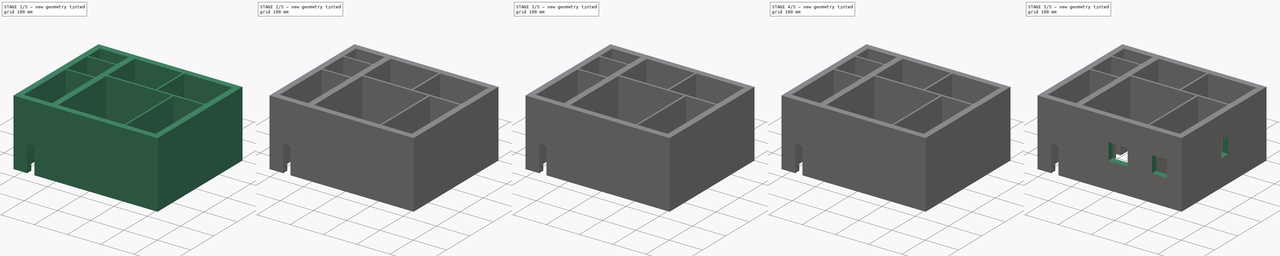
[diagram: build sequence overview — one tinted view per stage of 5, left to right]
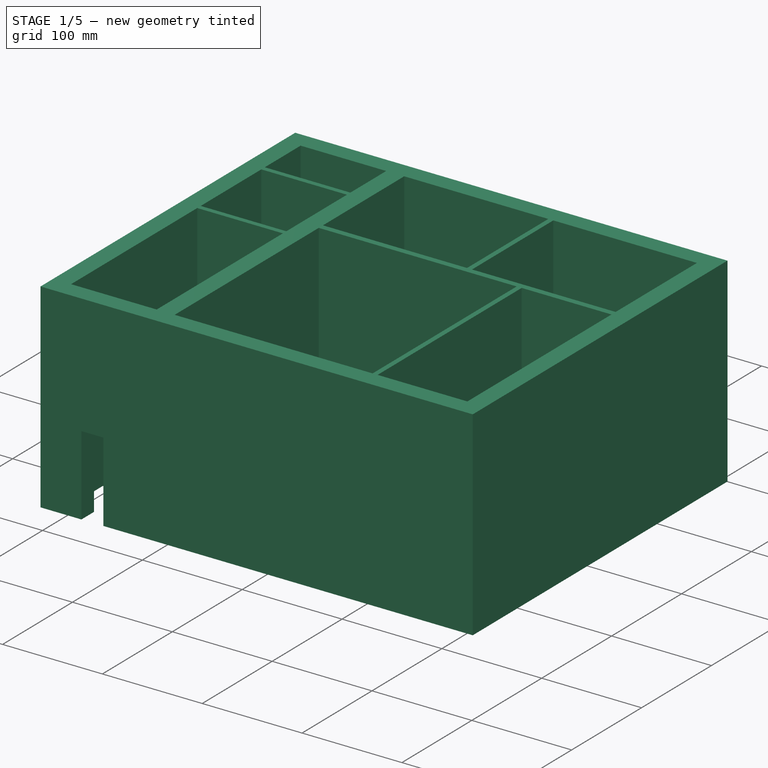
[diagram: stage 1 of 5 — iso view after this stage's code; geometry added in this stage tinted green]
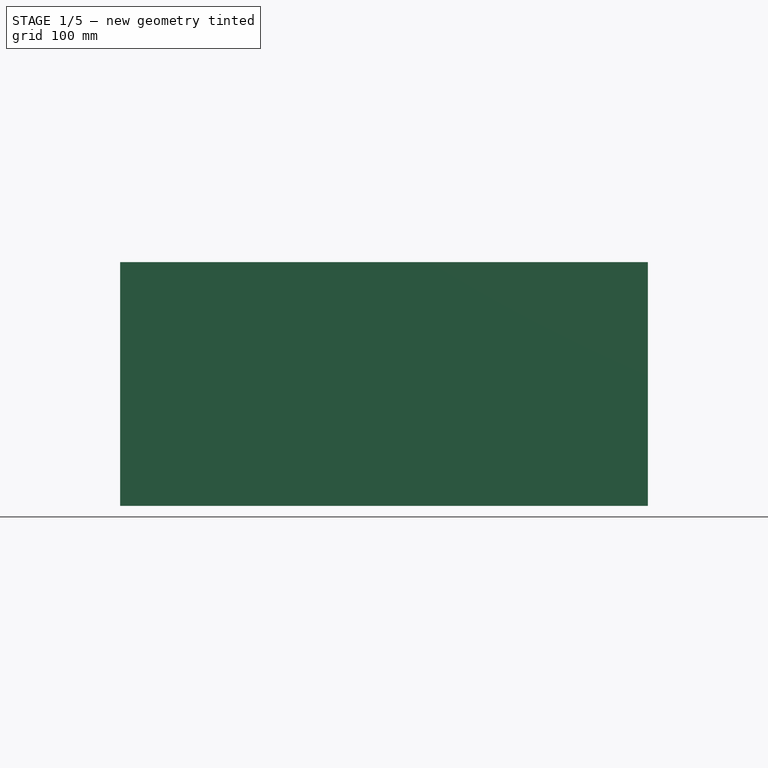
[diagram: stage 1 of 5 — front view after this stage's code; geometry added in this stage tinted green]
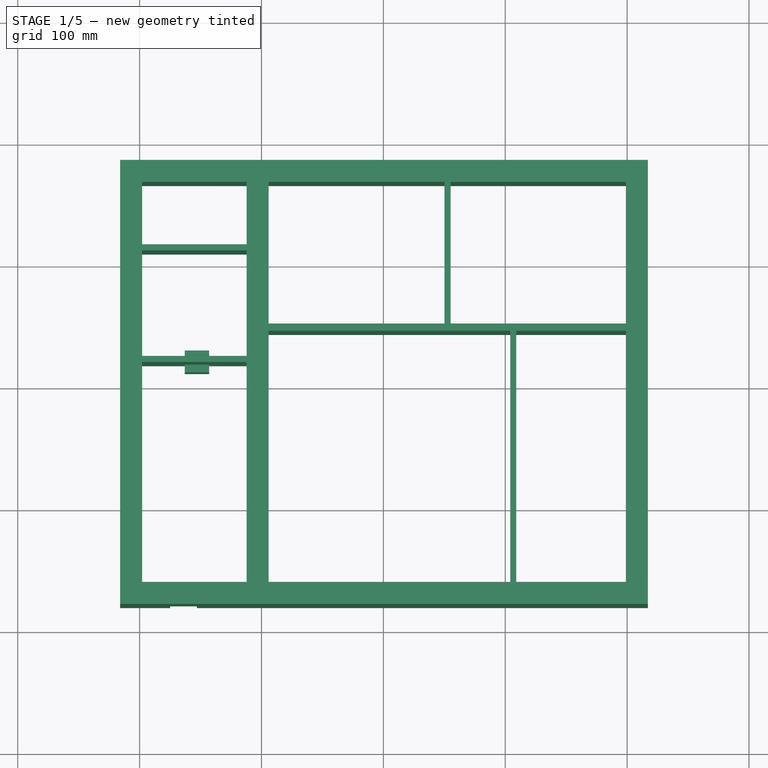
[diagram: stage 1 of 5 — top view after this stage's code; geometry added in this stage tinted green]
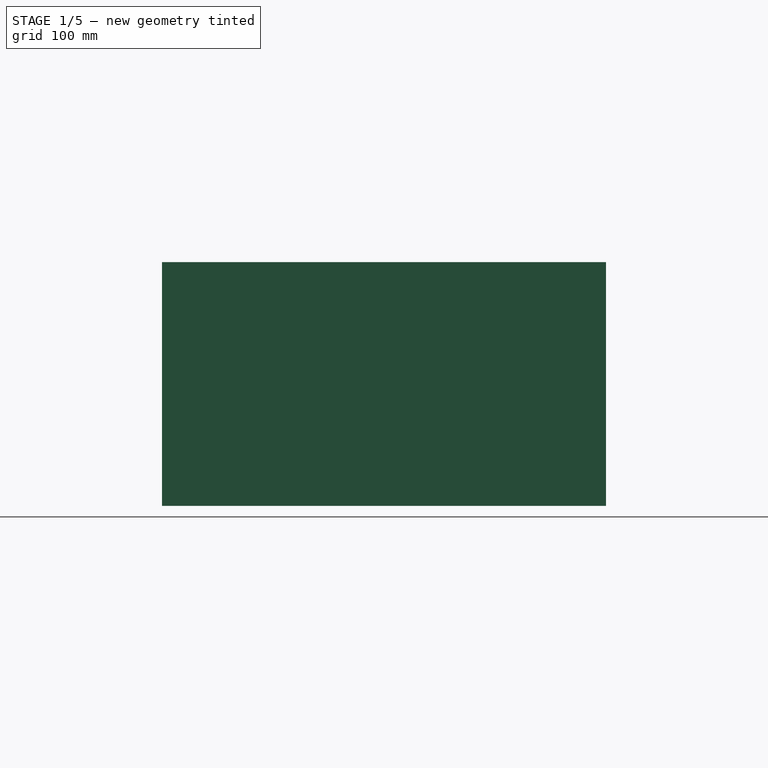
[diagram: stage 1 of 5 — right view after this stage's code; geometry added in this stage tinted green]
FCSTD DOCUMENT  (FreeCAD 0.18R4 (GitTag))
Label: Home
License: All rights reserved
LicenseURL: http://en.wikipedia.org/wiki/All_rights_reserved
objects: Part::Box×18, Part::Cut×18, Sketcher::SketchObject×3, Part::FeaturePython×3, Image::ImagePlane×1
note: 42 computed .brp shape members not serialized (recipe doc carries the construction recipe); baked Part::Feature solids carry a one-line shape summary decoded from their .brp

FEATURE [Image::ImagePlane] ImagePlane
  XSize = 452
  YSize = 380
FEATURE [Sketcher::SketchObject] Sketch
  sketch-geometry (5):
    g0: LineSegment StartX=-206.94 StartY=175.28 StartZ=0 EndX=208 EndY=175.28 EndZ=0
    g1: LineSegment StartX=208 StartY=175.28 StartZ=0 EndX=208 EndY=-171.04 EndZ=0
    g2: LineSegment StartX=208 StartY=-171.04 StartZ=0 EndX=-206.94 EndY=-171.04 EndZ=0
    g3: LineSegment StartX=-206.94 StartY=-171.04 StartZ=0 EndX=-206.94 EndY=175.28 EndZ=0
    g4: LineSegment StartX=-103.18 StartY=175.28 StartZ=0 EndX=-103.18 EndY=-171.04 EndZ=0
  constraints (16):
    c: Coincident(g0,g1)
    c: Coincident(g1,g2)
    c: Coincident(g2,g3)
    c: Coincident(g3,g0)
    c: Horizontal(g0)
    c: Horizontal(g2)
    c: Vertical(g1)
    c: Vertical(g3)
    c: PointOnObject(g4,g0)
    c: PointOnObject(g4,g2)
    c: Vertical(g4)
    c: DistanceY(g-1,g0) = 175.28
    c: Distance(g-1,g4) = 103.18
    c: DistanceY(g1,g1) = 346.32
    c: DistanceX(g2,g2) = 414.94
    c: DistanceX(g-2,g1) = 208
FEATURE [Part::FeaturePython] Wall  # Arch/BIM object (typed FeaturePython)
  Align = 2
  Base = -> Sketch
  BlockHeight = 0
  BlockLength = 0
  CountBroken = 0
  CountEntire = 0
  Face = 0
  Height = 200
  HorizontalArea = 0
  IfcRole = 156
  Joint = 0
  Length = 1868.84
  MakeBlocks = false
  MoveWithHost = false
  Normal = (0,0,0)
  OffsetFirst = 0
  OffsetSecond = 0
  PerimeterLength = 0
  VerticalArea = 0
  Width = 18
FEATURE [Sketcher::SketchObject] Sketch001
  ExternalGeometry = -> [Sketch]
  sketch-geometry (1):
    g0: LineSegment StartX=-103.18 StartY=47.05 StartZ=0 EndX=208 EndY=47.05 EndZ=0
  constraints (4):
    c: PointOnObject(g0,g-4)
    c: PointOnObject(g0,g-3)
    c: Horizontal(g0)
    c: Distance(g-1,g0) = 47.05
FEATURE [Part::FeaturePython] Wall001  # Arch/BIM object (typed FeaturePython)
  Align = 2
  Base = -> Sketch001
  BlockHeight = 0
  BlockLength = 0
  CountBroken = 0
  CountEntire = 0
  Face = 0
  Height = 200
  HorizontalArea = 1867.08
  IfcRole = 156
  Joint = 0
  Length = 311.18
  MakeBlocks = false
  MoveWithHost = false
  Normal = (0,0,0)
  OffsetFirst = 0
  OffsetSecond = 0
  PerimeterLength = 634.36
  VerticalArea = 126872
  Width = 6
FEATURE [Sketcher::SketchObject] Sketch002
  ExternalGeometry = -> [Sketch001,Sketch]
  sketch-geometry (4):
    g0: LineSegment StartX=52.66 StartY=175.28 StartZ=0 EndX=52.66 EndY=47.05 EndZ=0
    g1: LineSegment StartX=106.58 StartY=47.05 StartZ=0 EndX=106.58 EndY=-171.04 EndZ=0
    g2: LineSegment StartX=-206.94 StartY=112.53 StartZ=0 EndX=-103.18 EndY=112.53 EndZ=0
    g3: LineSegment StartX=-206.94 StartY=20.91 StartZ=0 EndX=-103.18 EndY=20.91 EndZ=0
  constraints (16):
    c: PointOnObject(g0,g-4)
    c: PointOnObject(g0,g-3)
    c: Vertical(g0)
    c: DistanceX(g-2,g0) = 52.66
    c: PointOnObject(g1,g-3)
    c: PointOnObject(g1,g-8)
    c: Vertical(g1)
    c: Distance(g-1,g1) = 106.58
    c: PointOnObject(g2,g-7)
    c: PointOnObject(g2,g-5)
    c: Horizontal(g2)
    c: PointOnObject(g3,g-5)
    c: Horizontal(g3)
    c: DistanceY(g-1,g3) = 20.91
    c: DistanceY(g-1,g2) = 112.53
    c: PointOnObject(g3,g-7)
FEATURE [Part::FeaturePython] Wall002  # Arch/BIM object (typed FeaturePython)
  Additions = -> [Wall001,Wall]
  Align = 2
  Base = -> Sketch002
  BlockHeight = 0
  BlockLength = 0
  CountBroken = 0
  CountEntire = 0
  Face = 0
  Height = 200
  HorizontalArea = 0
  IfcRole = 156
  Joint = 0
  Length = 553.84
  MakeBlocks = false
  MoveWithHost = false
  Normal = (0,0,0)
  OffsetFirst = 0
  OffsetSecond = 0
  PerimeterLength = 0
  VerticalArea = 0
  Width = 5
FEATURE [Part::Box] Box  label="Куб"
  AttacherType = Attacher::AttachEngine3D
  Height = 80
  Length = 22
  Placement = pos=(-175,-182,0) rot=(0,0,1;0rad)
  Width = 25
FEATURE [Part::Box] Box001  label="Куб001"
  AttacherType = Attacher::AttachEngine3D
  Height = 80
  Length = 25
  Placement = pos=(-115,-17,0) rot=(0,0,1;0rad)
  Width = 20
FEATURE [Part::Box] Box002  label="Куб002"
  AttacherType = Attacher::AttachEngine3D
  Height = 80
  Length = 20
  Placement = pos=(-163,12,0) rot=(0,0,1;0rad)
  Width = 18
FEATURE [Part::Cut] Cut
  Base = -> Wall002
  Tool = -> Box
FEATURE [Part::Cut] Cut001
  Base = -> Cut
  Tool = -> Box001
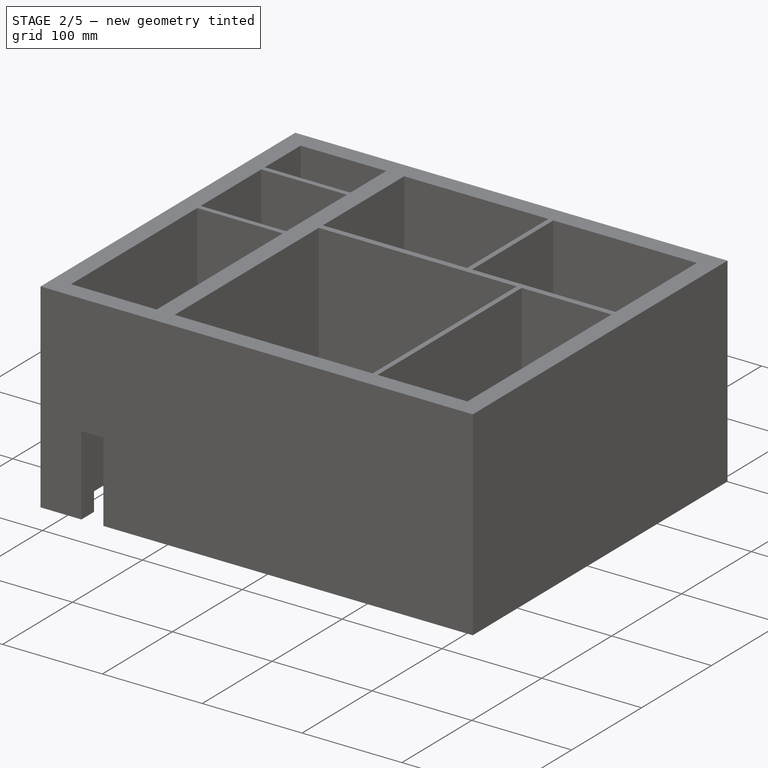
[diagram: stage 2 of 5 — iso view after this stage's code; geometry added in this stage tinted green]
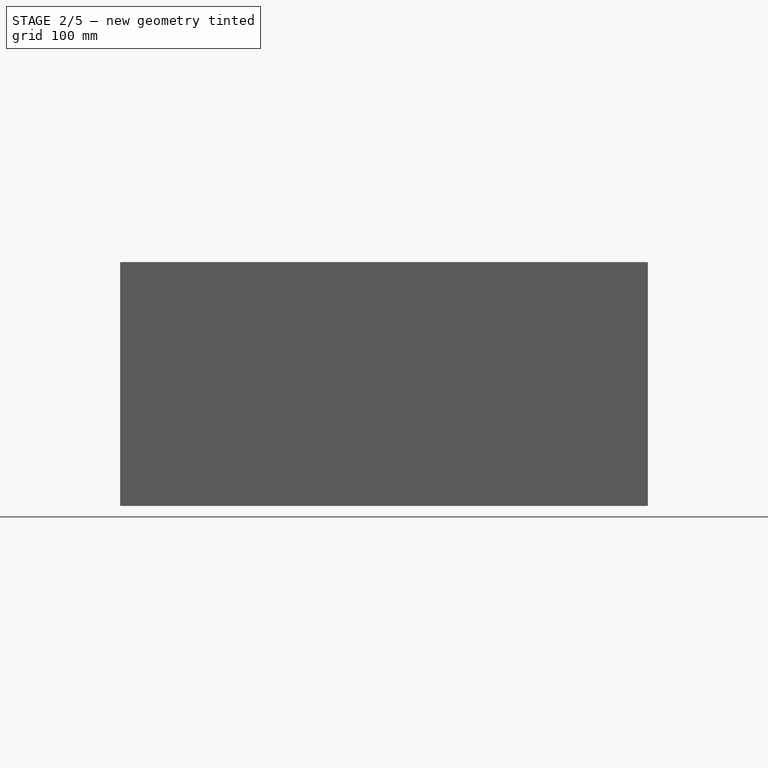
[diagram: stage 2 of 5 — front view after this stage's code; geometry added in this stage tinted green]
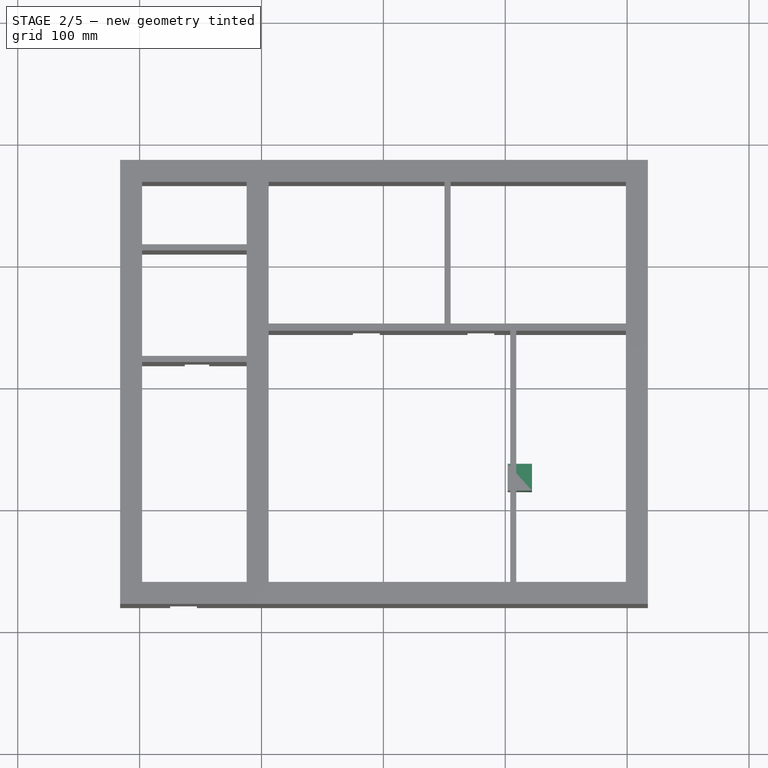
[diagram: stage 2 of 5 — top view after this stage's code; geometry added in this stage tinted green]
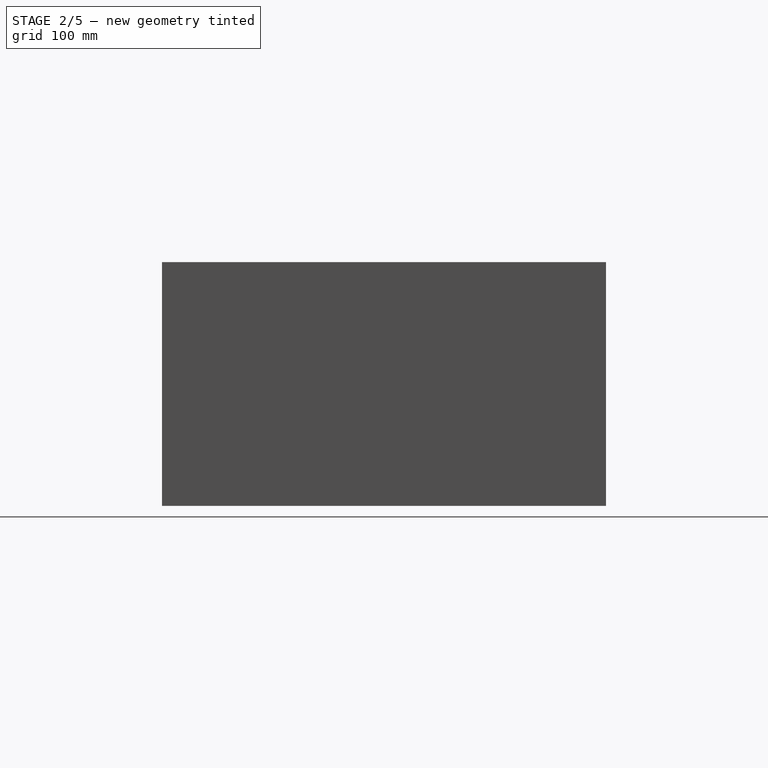
[diagram: stage 2 of 5 — right view after this stage's code; geometry added in this stage tinted green]
FEATURE [Part::Box] Box003  label="Куб003"
  AttacherType = Attacher::AttachEngine3D
  Height = 80
  Length = 22
  Placement = pos=(-25,39,0) rot=(0,0,1;0rad)
  Width = 20
FEATURE [Part::Box] Box004  label="Куб004"
  AttacherType = Attacher::AttachEngine3D
  Height = 80
  Length = 22
  Placement = pos=(69,39,0) rot=(0,0,1;0rad)
  Width = 20
FEATURE [Part::Box] Box005  label="Куб005"
  AttacherType = Attacher::AttachEngine3D
  Height = 80
  Length = 22
  Placement = pos=(102,17,0) rot=(0,0,1;4.71239rad)
  Width = 20
FEATURE [Part::Box] Box006  label="Куб006"
  AttacherType = Attacher::AttachEngine3D
  Height = 80
  Length = 22
  Placement = pos=(102,-63,0) rot=(0,0,-1;1.5708rad)
  Width = 20
FEATURE [Part::Cut] Cut002
  Base = -> Cut001
  Tool = -> Box002
FEATURE [Part::Cut] Cut003
  Base = -> Cut002
  Tool = -> Box003
FEATURE [Part::Cut] Cut004
  Base = -> Cut003
  Tool = -> Box004
FEATURE [Part::Cut] Cut005
  Base = -> Cut004
  Tool = -> Box005
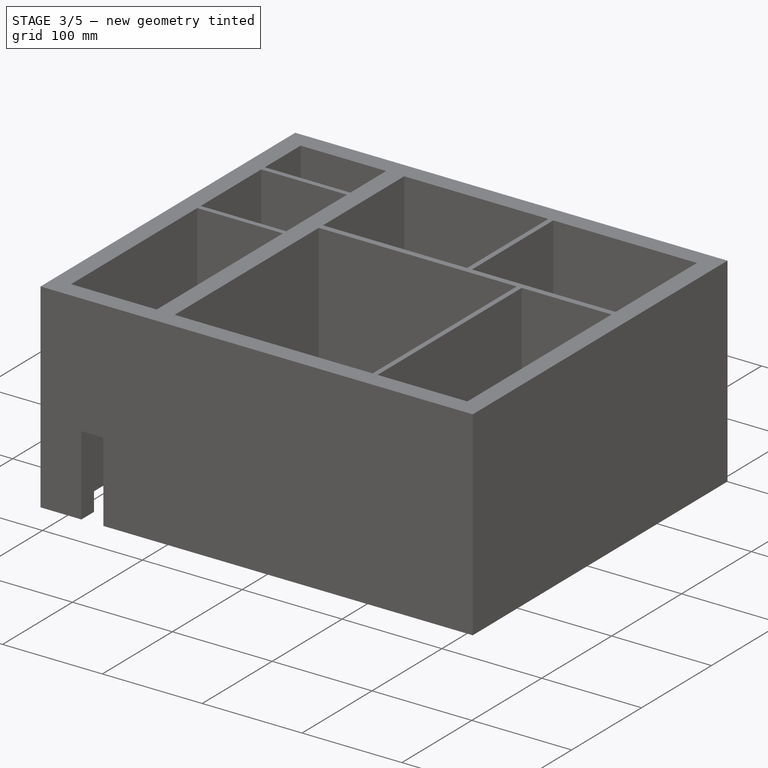
[diagram: stage 3 of 5 — iso view after this stage's code; geometry added in this stage tinted green]
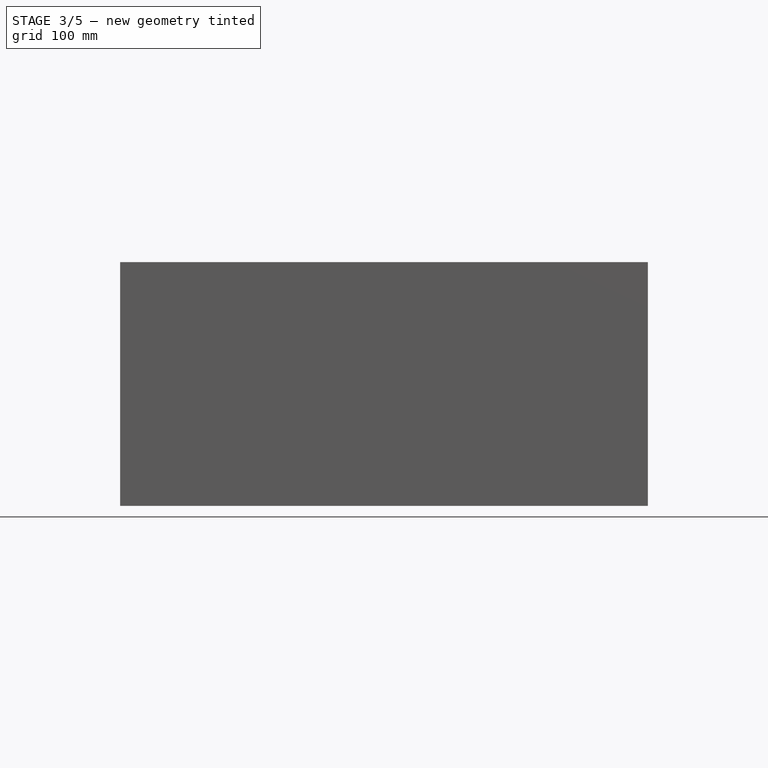
[diagram: stage 3 of 5 — front view after this stage's code; geometry added in this stage tinted green]
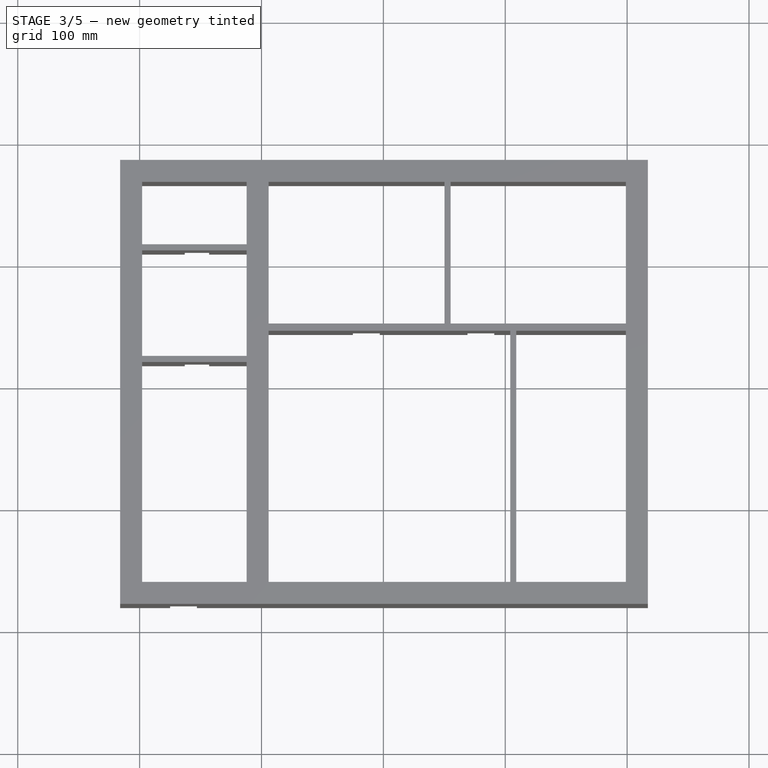
[diagram: stage 3 of 5 — top view after this stage's code; geometry added in this stage tinted green]
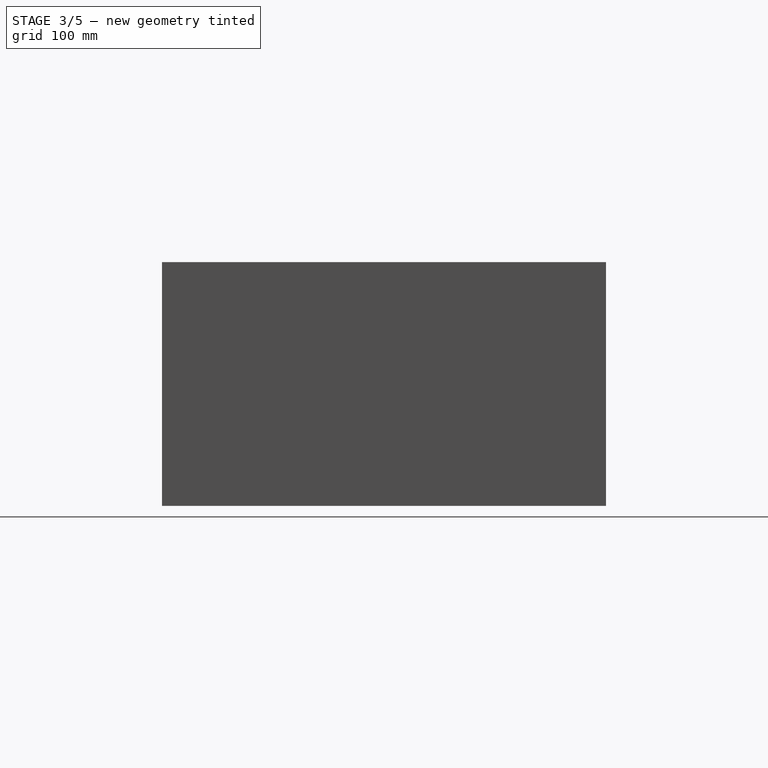
[diagram: stage 3 of 5 — right view after this stage's code; geometry added in this stage tinted green]
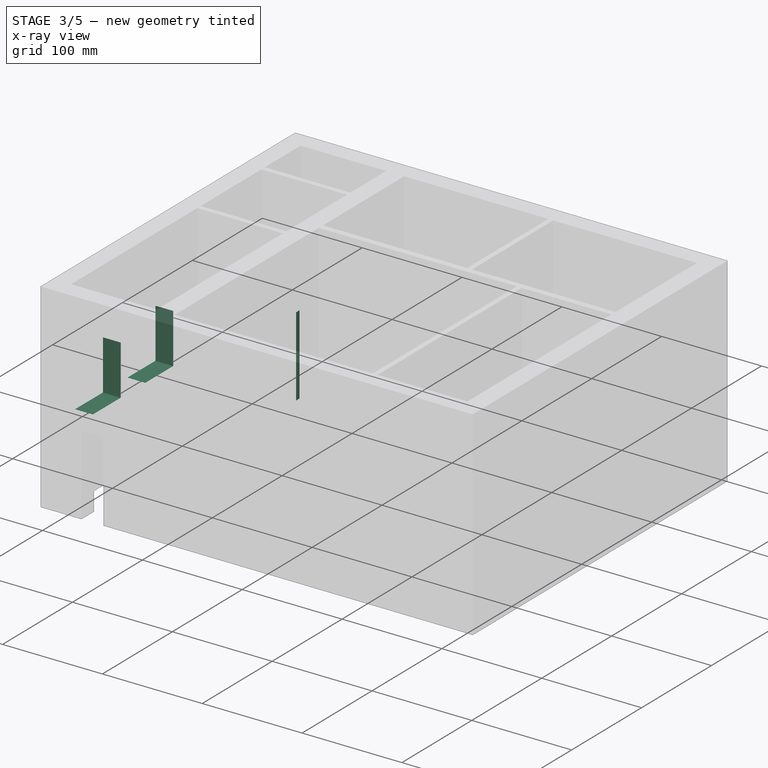
[diagram: stage 3 of 5 — x-ray composite at the iso view; earlier geometry ghosted, this stage's added geometry solid]
FEATURE [Part::Box] Box007  label="Куб007"
  AttacherType = Attacher::AttachEngine3D
  Height = 80
  Length = 20
  Placement = pos=(-163,101,0) rot=(0,0,1;0rad)
  Width = 18
FEATURE [Part::Box] Box008  label="Куб008"
  AttacherType = Attacher::AttachEngine3D
  Height = 50
  Length = 30
  Placement = pos=(-222,-56,70) rot=(0,0,1;0rad)
  Width = 40
FEATURE [Part::Box] Box009  label="Куб009"
  AttacherType = Attacher::AttachEngine3D
  Height = 50
  Length = 30
  Placement = pos=(-222,-131,70) rot=(0,0,1;0rad)
  Width = 40
FEATURE [Part::Cut] Cut006
  Base = -> Cut005
  Tool = -> Box006
FEATURE [Part::Cut] Cut007
  Base = -> Cut006
  Tool = -> Box007
FEATURE [Part::Cut] Cut008
  Base = -> Cut007
  Tool = -> Box008
FEATURE [Part::Cut] Cut009
  Base = -> Cut008
  Tool = -> Box009
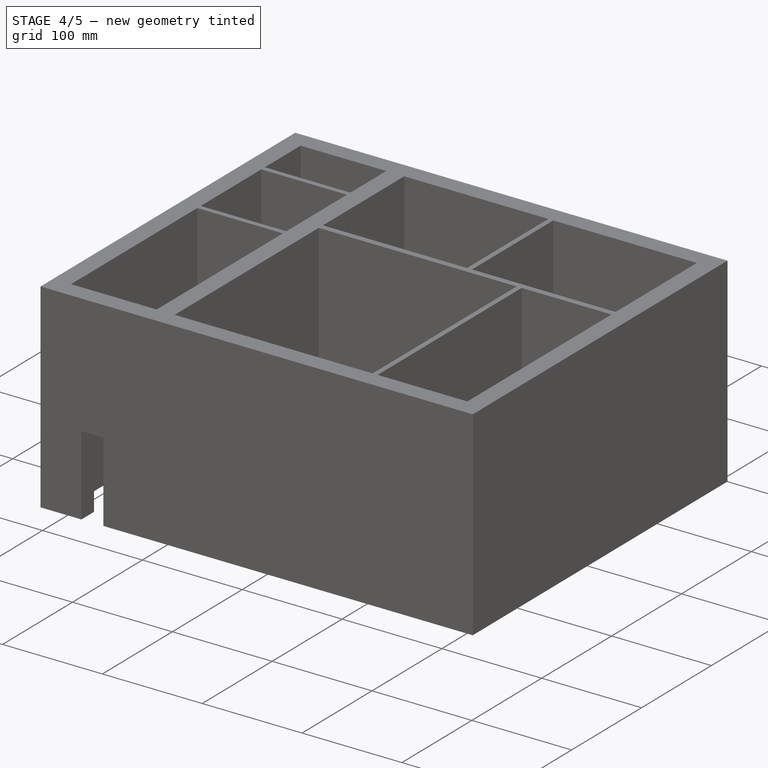
[diagram: stage 4 of 5 — iso view after this stage's code; geometry added in this stage tinted green]
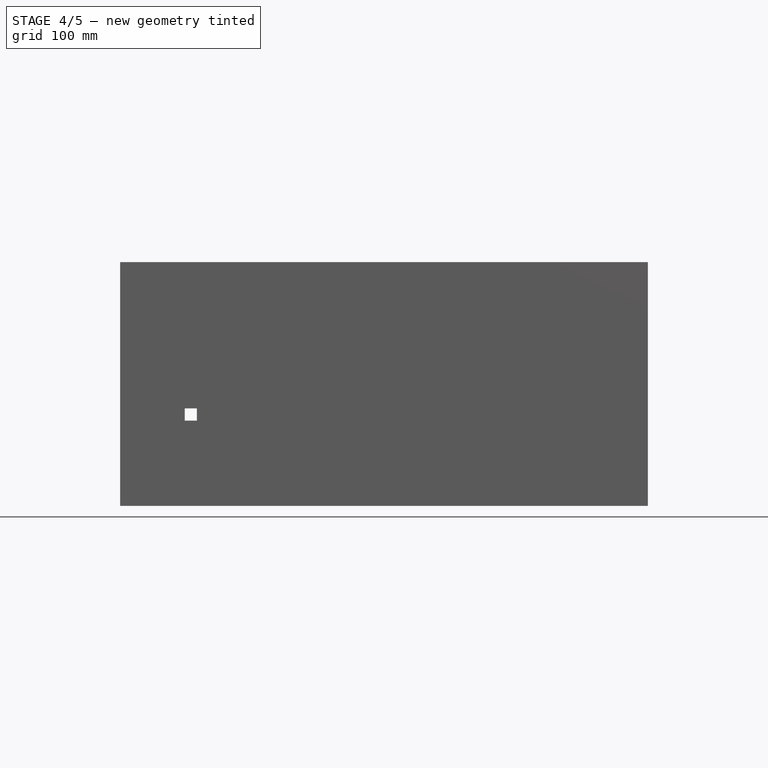
[diagram: stage 4 of 5 — front view after this stage's code; geometry added in this stage tinted green]
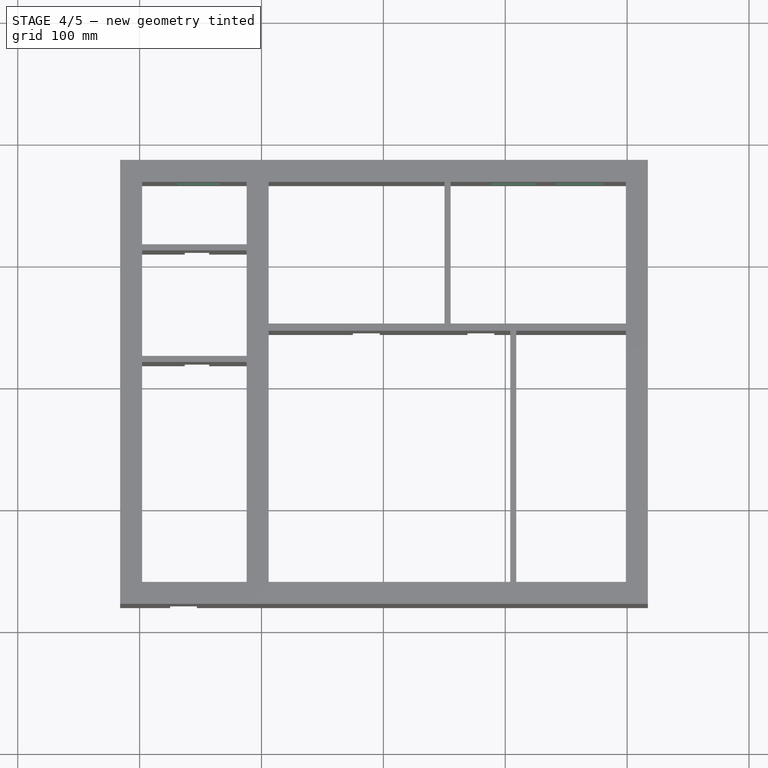
[diagram: stage 4 of 5 — top view after this stage's code; geometry added in this stage tinted green]
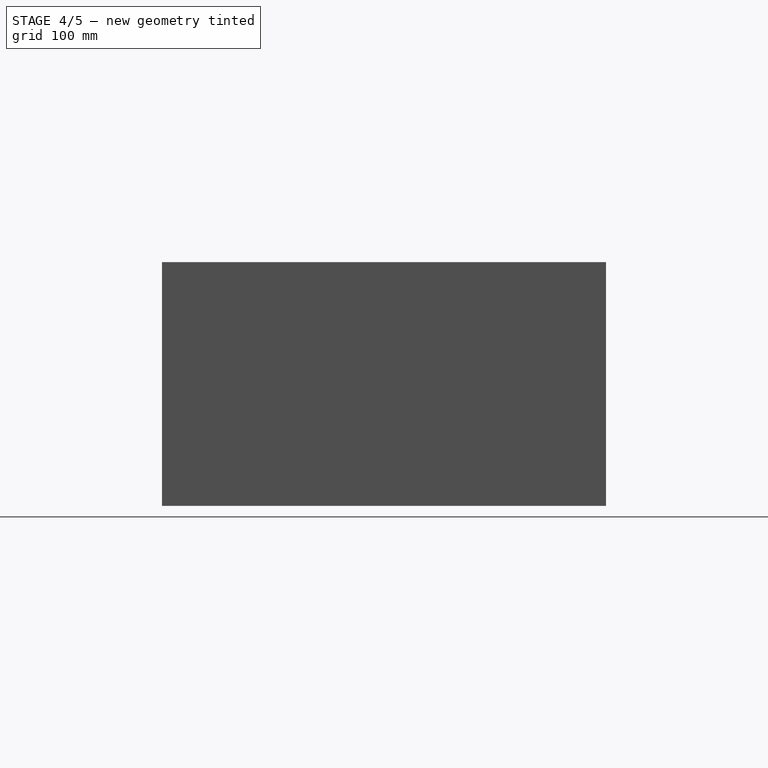
[diagram: stage 4 of 5 — right view after this stage's code; geometry added in this stage tinted green]
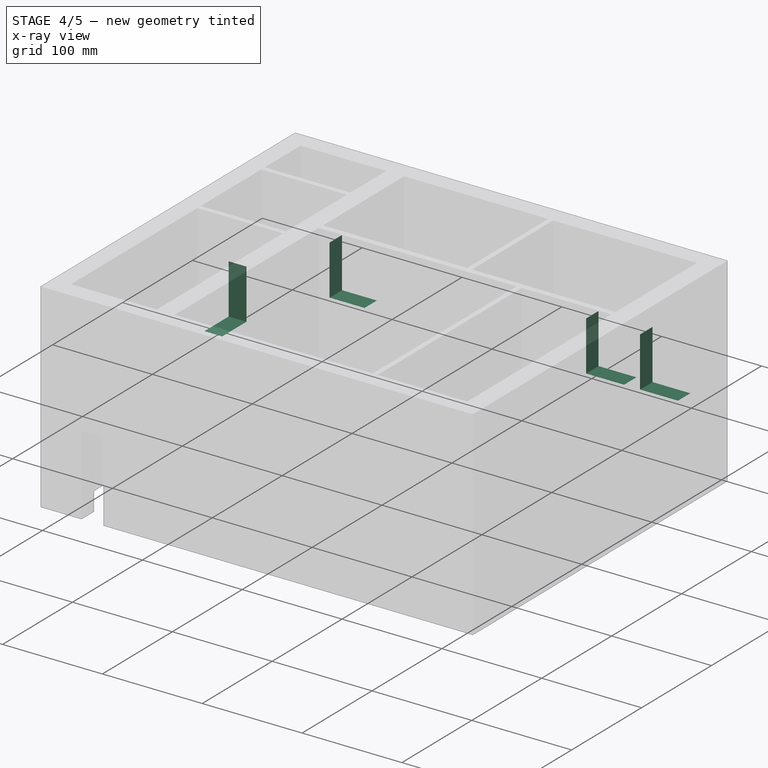
[diagram: stage 4 of 5 — x-ray composite at the iso view; earlier geometry ghosted, this stage's added geometry solid]
FEATURE [Part::Box] Box010  label="Куб010"
  AttacherType = Attacher::AttachEngine3D
  Height = 50
  Length = 30
  Placement = pos=(-222,54,70) rot=(0,0,1;0rad)
  Width = 35
FEATURE [Part::Box] Box011  label="Куб011"
  AttacherType = Attacher::AttachEngine3D
  Height = 50
  Length = 30
  Placement = pos=(-169,189,70) rot=(0,0,1;4.71239rad)
  Width = 35
FEATURE [Part::Box] Box012  label="Куб012"
  AttacherType = Attacher::AttachEngine3D
  Height = 50
  Length = 30
  Placement = pos=(88,189,70) rot=(0,0,-1;1.5708rad)
  Width = 38
FEATURE [Part::Box] Box013  label="Куб013"
  AttacherType = Attacher::AttachEngine3D
  Height = 50
  Length = 30
  Placement = pos=(142,189,70) rot=(0,0,-1;1.5708rad)
  Width = 38
FEATURE [Part::Cut] Cut010
  Base = -> Cut009
  Tool = -> Box010
FEATURE [Part::Cut] Cut011
  Base = -> Cut010
  Tool = -> Box011
FEATURE [Part::Cut] Cut012
  Base = -> Cut011
  Tool = -> Box012
FEATURE [Part::Cut] Cut013
  Base = -> Cut012
  Tool = -> Box013
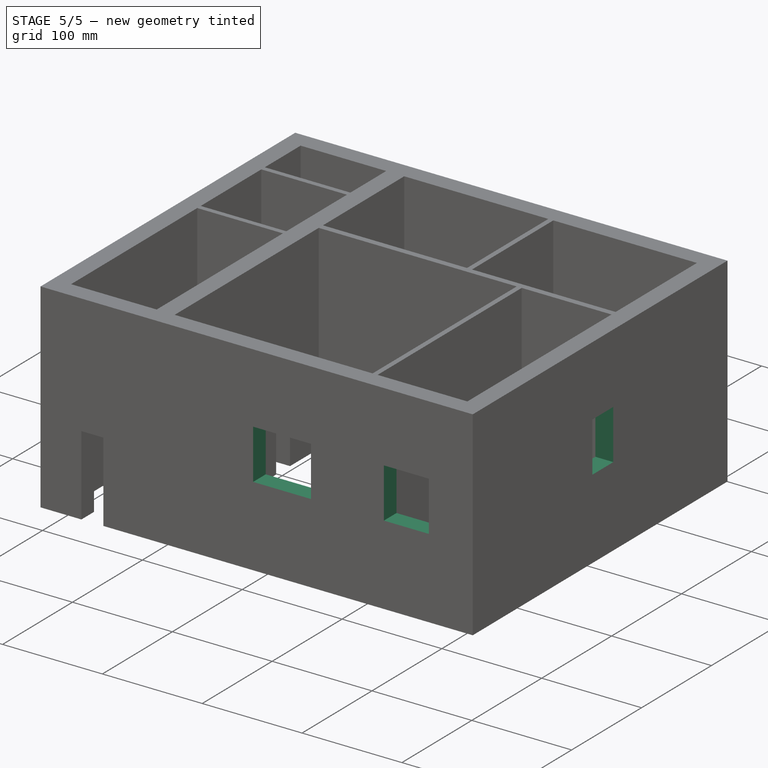
[diagram: stage 5 of 5 — iso view after this stage's code; geometry added in this stage tinted green]
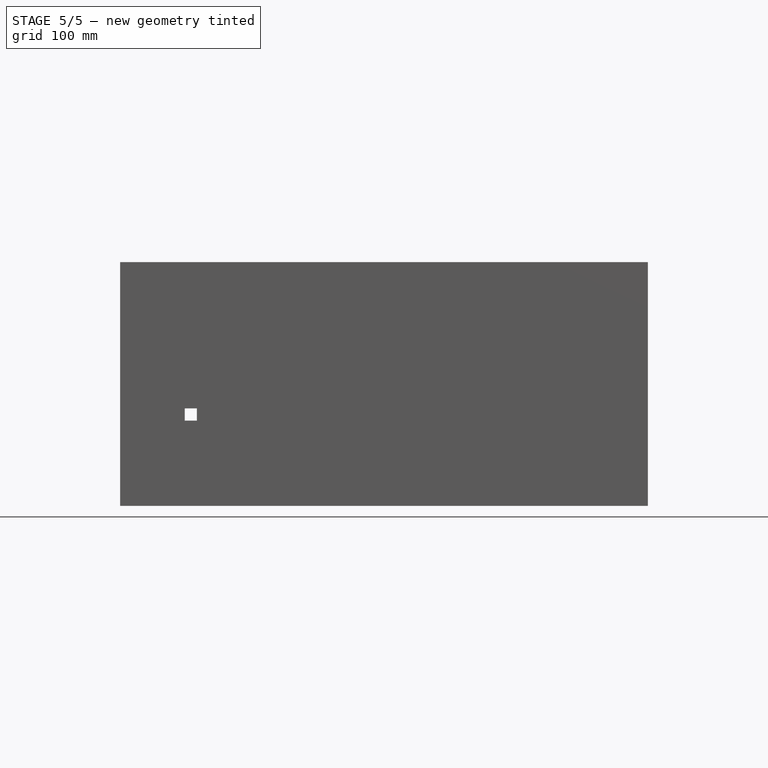
[diagram: stage 5 of 5 — front view after this stage's code; geometry added in this stage tinted green]
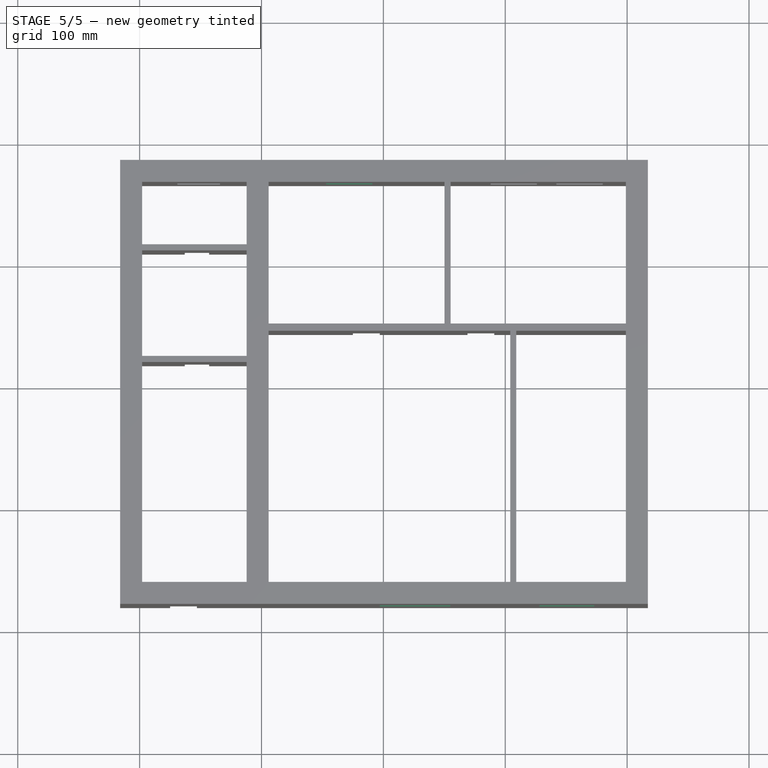
[diagram: stage 5 of 5 — top view after this stage's code; geometry added in this stage tinted green]
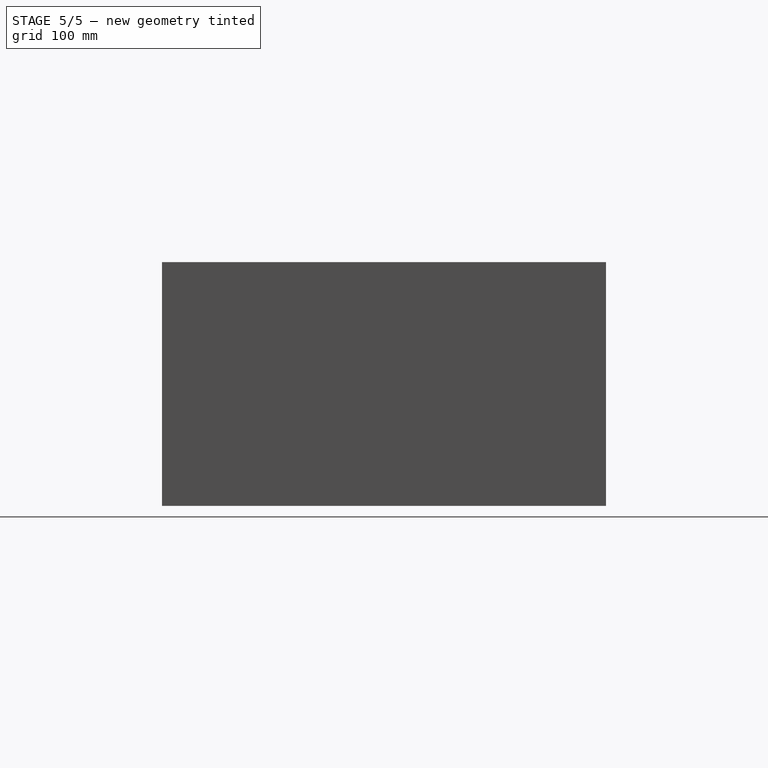
[diagram: stage 5 of 5 — right view after this stage's code; geometry added in this stage tinted green]
FEATURE [Part::Box] Box014  label="Куб014"
  AttacherType = Attacher::AttachEngine3D
  Height = 50
  Length = 30
  Placement = pos=(-47,189,80) rot=(0,0,-1;1.5708rad)
  Width = 38
FEATURE [Part::Box] Box015  label="Куб015"
  AttacherType = Attacher::AttachEngine3D
  Height = 50
  Length = 30
  Placement = pos=(195,-9,80) rot=(0,0,1;0rad)
  Width = 30
FEATURE [Part::Box] Box016  label="Куб016"
  AttacherType = Attacher::AttachEngine3D
  Height = 50
  Length = 30
  Placement = pos=(128,-154,80) rot=(0,0,-1;1.5708rad)
  Width = 45
FEATURE [Part::Box] Box017  label="Куб017"
  AttacherType = Attacher::AttachEngine3D
  Height = 50
  Length = 30
  Placement = pos=(-3,-154,80) rot=(0,0,-1;1.5708rad)
  Width = 58
FEATURE [Part::Cut] Cut014
  Base = -> Cut013
  Tool = -> Box014
FEATURE [Part::Cut] Cut015
  Base = -> Cut014
  Tool = -> Box015
FEATURE [Part::Cut] Cut016
  Base = -> Cut015
  Tool = -> Box016
FEATURE [Part::Cut] Cut017
  Base = -> Cut016
  Tool = -> Box017
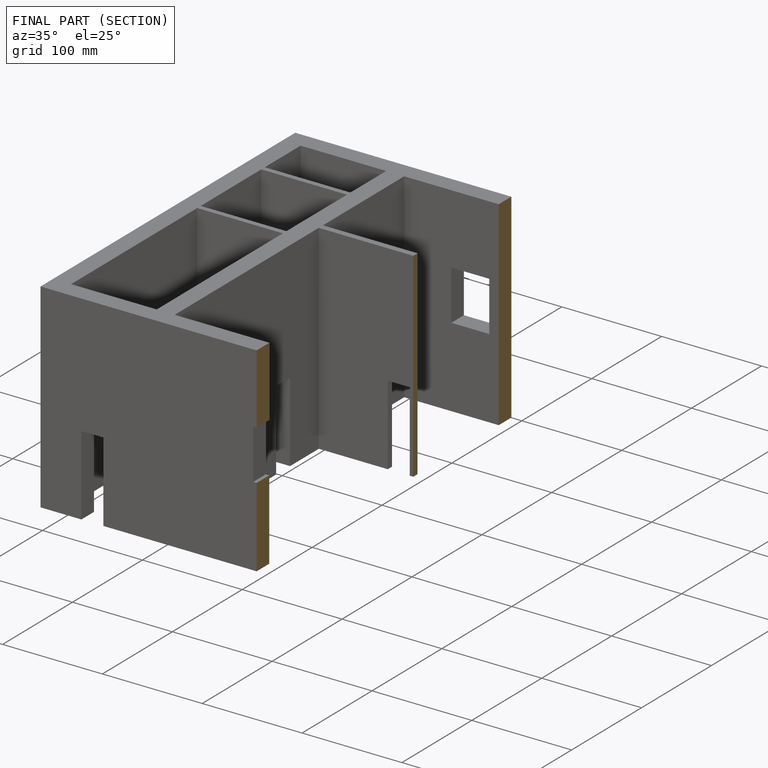
[diagram: finished part — half-section view (interior)]
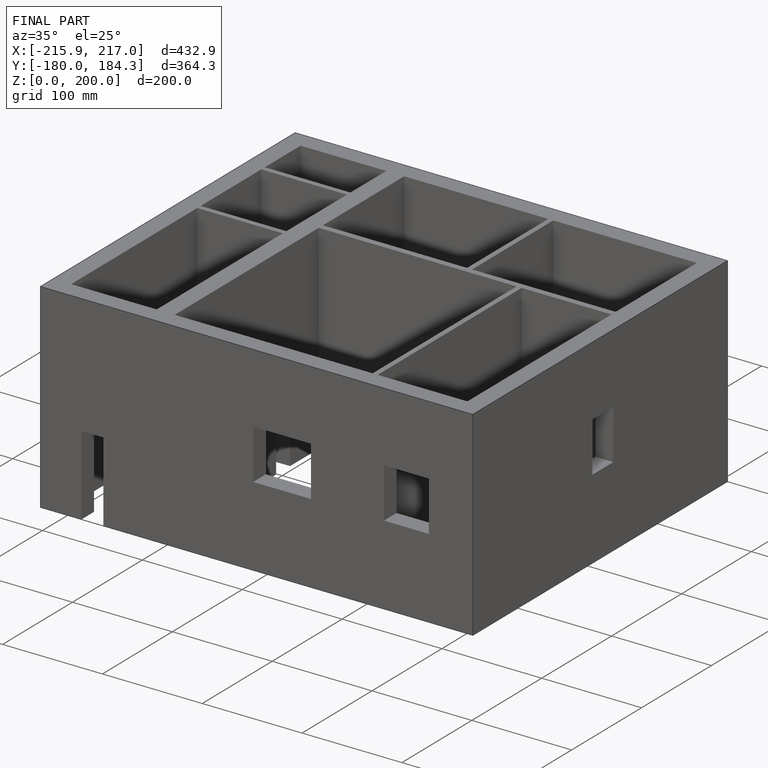
[diagram: finished part — iso view with bounding-box wireframe]
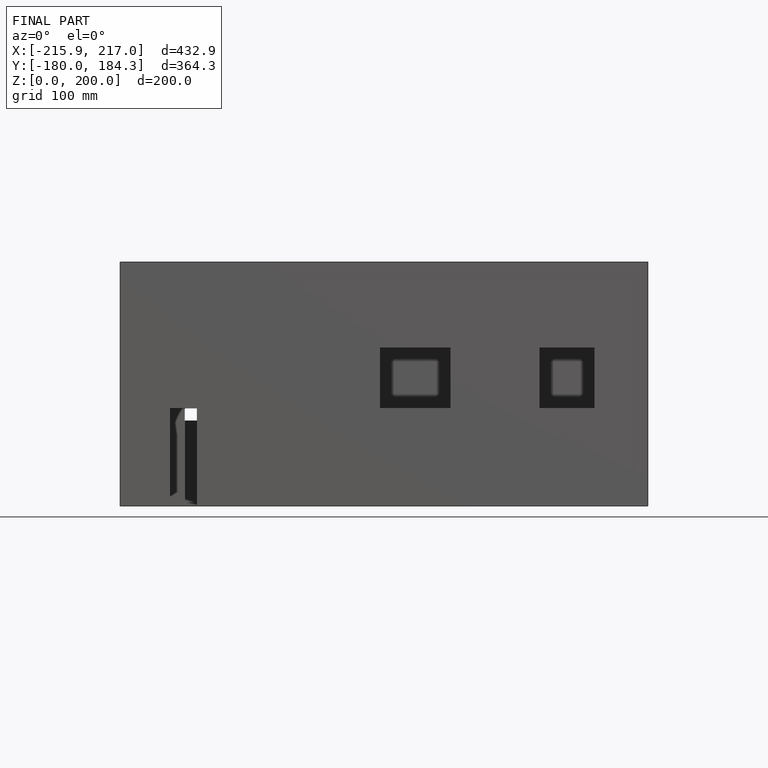
[diagram: finished part — front view with bounding-box wireframe]
